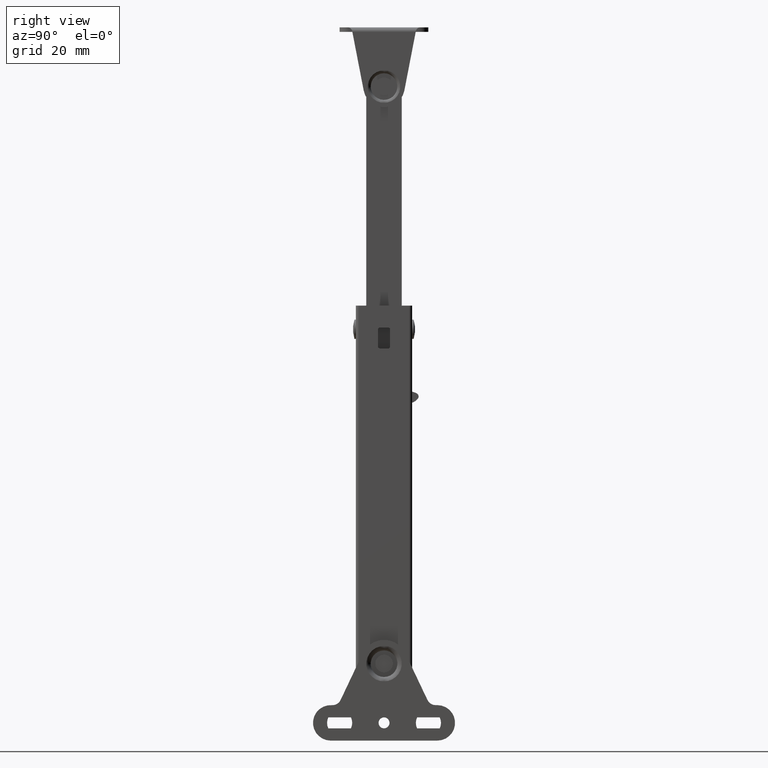
[diagram: clean part render]
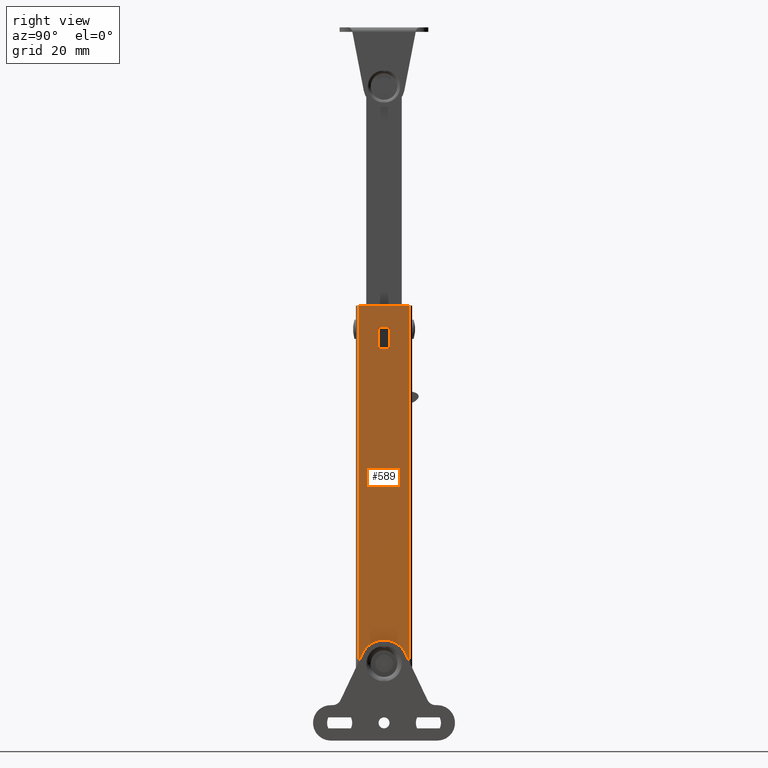
[diagram: same view with one face highlighted and labeled with its STEP entity id]
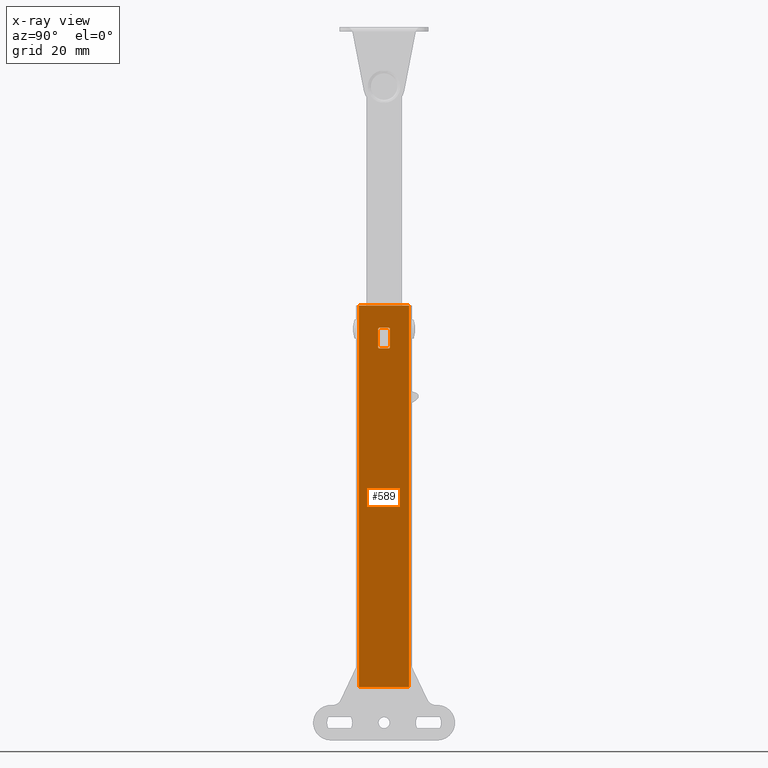
[diagram: x-ray of the same camera — body ghosted, the highlighted face saturated]
A machine part, right view. The second image highlights one B-rep face of the part: STEP entity #589.
The next image is the same camera in x-ray: the body ghosted, the highlighted face saturated — about 0% of this face is hidden behind the body in this view.
In plain terms, the highlighted planar face has unit normal (1, 0, 0).
Its self-contained STEP definition (entity closure, byte-faithful):
#589=ADVANCED_FACE('',(#2380,#2381),#2379,.T.);
#2379=PLANE('',#3993);
#2380=FACE_OUTER_BOUND('',#3994,.T.);
#2381=FACE_BOUND('',#3995,.T.);
#3990=CARTESIAN_POINT('',(0.00000000000E+00,-1.02000000000E+01,1.31000000000E+02));
#3991=DIRECTION('',(1.00000000000E+00,0.00000000000E+00,0.00000000000E+00));
#3992=DIRECTION('',(0.00000000000E+00,0.00000000000E+00,-1.00000000000E+00));
#3993=AXIS2_PLACEMENT_3D('',#3990,#3991,#3992);
#3994=EDGE_LOOP('',(#5025,#5026,#5027,#5028));
#3995=EDGE_LOOP('',(#5029,#5030,#5031,#5032,#5033,#5034,#5035,#5036));
#5025=ORIENTED_EDGE('',*,*,#5642,.F.);
#5026=ORIENTED_EDGE('',*,*,#5643,.F.);
#5027=ORIENTED_EDGE('',*,*,#5601,.T.);
#5028=ORIENTED_EDGE('',*,*,#5641,.T.);
#5029=ORIENTED_EDGE('',*,*,#5644,.T.);
#5030=ORIENTED_EDGE('',*,*,#5645,.F.);
#5031=ORIENTED_EDGE('',*,*,#5646,.T.);
#5032=ORIENTED_EDGE('',*,*,#5647,.F.);
#5033=ORIENTED_EDGE('',*,*,#5648,.T.);
#5034=ORIENTED_EDGE('',*,*,#5649,.F.);
#5035=ORIENTED_EDGE('',*,*,#5650,.T.);
#5036=ORIENTED_EDGE('',*,*,#5651,.F.);
#5601=EDGE_CURVE('',#8472,#8465,#8473,.T.);
#5641=EDGE_CURVE('',#8465,#8736,#8743,.T.);
#5642=EDGE_CURVE('',#8749,#8736,#8750,.T.);
#5643=EDGE_CURVE('',#8472,#8749,#8756,.T.);
#5644=EDGE_CURVE('',#8762,#8763,#8764,.T.);
#5645=EDGE_CURVE('',#8770,#8763,#8771,.T.);
#5646=EDGE_CURVE('',#8770,#8777,#8778,.T.);
#5647=EDGE_CURVE('',#8784,#8777,#8785,.T.);
#5648=EDGE_CURVE('',#8784,#8791,#8792,.T.);
#5649=EDGE_CURVE('',#8798,#8791,#8799,.T.);
#5650=EDGE_CURVE('',#8798,#8805,#8806,.T.);
#5651=EDGE_CURVE('',#8762,#8805,#8812,.T.);
#8465=VERTEX_POINT('',#10762);
#8472=VERTEX_POINT('',#10767);
#8473=LINE('',#10768,#10769);
#8736=VERTEX_POINT('',#10929);
#8743=LINE('',#10934,#10935);
#8749=VERTEX_POINT('',#10937);
#8750=LINE('',#10938,#10939);
#8756=LINE('',#10941,#10942);
#8762=VERTEX_POINT('',#10944);
#8763=VERTEX_POINT('',#10945);
#8764=LINE('',#10946,#10947);
#8770=VERTEX_POINT('',#10949);
#8771=CIRCLE('',#10953,5.00000000000E-01);
#8777=VERTEX_POINT('',#10954);
#8778=LINE('',#10955,#10956);
#8784=VERTEX_POINT('',#10958);
#8785=CIRCLE('',#10962,5.00000000000E-01);
#8791=VERTEX_POINT('',#10963);
#8792=LINE('',#10964,#10965);
#8798=VERTEX_POINT('',#10967);
#8799=CIRCLE('',#10971,5.00000000000E-01);
#8805=VERTEX_POINT('',#10972);
#8806=LINE('',#10973,#10974);
#8812=CIRCLE('',#10979,5.00000000000E-01);
#10762=CARTESIAN_POINT('',(0.00000000000E+00,8.50000000000E+00,-8.00000000000E+00));
#10767=CARTESIAN_POINT('',(-4.44089209850E-16,-8.50000000000E+00,-8.00000000000E+00));
#10768=CARTESIAN_POINT('',(0.00000000000E+00,-8.50000000000E+00,-8.00000000000E+00));
#10769=VECTOR('',#10770,1.70000000000E+01);
#10770=DIRECTION('',(0.00000000000E+00,1.00000000000E+00,0.00000000000E+00));
#10929=CARTESIAN_POINT('',(0.00000000000E+00,8.50000000000E+00,1.21000000000E+02));
#10934=CARTESIAN_POINT('',(0.00000000000E+00,8.50000000000E+00,-8.00000000000E+00));
#10935=VECTOR('',#10936,1.29000000000E+02);
#10936=DIRECTION('',(0.00000000000E+00,0.00000000000E+00,1.00000000000E+00));
#10937=CARTESIAN_POINT('',(-4.44089209850E-16,-8.50000000000E+00,1.21000000000E+02));
#10938=CARTESIAN_POINT('',(0.00000000000E+00,-8.50000000000E+00,1.21000000000E+02));
#10939=VECTOR('',#10940,1.70000000000E+01);
#10940=DIRECTION('',(0.00000000000E+00,1.00000000000E+00,0.00000000000E+00));
#10941=CARTESIAN_POINT('',(-4.44089209850E-16,-8.50000000000E+00,-8.00000000000E+00));
#10942=VECTOR('',#10943,1.29000000000E+02);
#10943=DIRECTION('',(0.00000000000E+00,0.00000000000E+00,1.00000000000E+00));
#10944=CARTESIAN_POINT('',(-1.66533453694E-13,-2.00000000000E+00,1.07000000079E+02));
#10945=CARTESIAN_POINT('',(-1.66533453694E-13,-2.00000000000E+00,1.13000000000E+02));
#10946=CARTESIAN_POINT('',(-1.66533453694E-13,-2.00000000000E+00,1.07000000079E+02));
#10947=VECTOR('',#10948,5.99999992146E+00);
#10948=DIRECTION('',(0.00000000000E+00,0.00000000000E+00,1.00000000000E+00));
#10949=CARTESIAN_POINT('',(-1.66533453694E-13,-1.50000002618E+00,1.13500000000E+02));
#10950=CARTESIAN_POINT('',(-1.66533453694E-13,-1.50000000000E+00,1.13000000000E+02));
#10951=DIRECTION('',(1.00000000000E+00,0.00000000000E+00,-0.00000000000E+00));
#10952=DIRECTION('',(-0.00000000000E+00,-0.00000000000E+00,-1.00000000000E+00));
#10953=AXIS2_PLACEMENT_3D('',#10950,#10951,#10952);
#10954=CARTESIAN_POINT('',(-1.66533453694E-13,1.50000000000E+00,1.13500000000E+02));
#10955=CARTESIAN_POINT('',(-1.66533453694E-13,-1.50000002618E+00,1.13500000000E+02));
#10956=VECTOR('',#10957,3.00000002618E+00);
#10957=DIRECTION('',(0.00000000000E+00,1.00000000000E+00,0.00000000000E+00));
#10958=CARTESIAN_POINT('',(-1.66533453694E-13,2.00000000000E+00,1.13000000000E+02));
#10959=CARTESIAN_POINT('',(-1.66533453694E-13,1.50000000000E+00,1.13000000000E+02));
#10960=DIRECTION('',(1.00000000000E+00,0.00000000000E+00,-0.00000000000E+00));
#10961=DIRECTION('',(-0.00000000000E+00,-0.00000000000E+00,-1.00000000000E+00));
#10962=AXIS2_PLACEMENT_3D('',#10959,#10960,#10961);
#10963=CARTESIAN_POINT('',(-1.66533453694E-13,2.00000000000E+00,1.07000000000E+02));
#10964=CARTESIAN_POINT('',(-1.66533453694E-13,2.00000000000E+00,1.13000000000E+02));
#10965=VECTOR('',#10966,6.00000000000E+00);
#10966=DIRECTION('',(0.00000000000E+00,0.00000000000E+00,-1.00000000000E+00));
#10967=CARTESIAN_POINT('',(0.00000000000E+00,1.50000000000E+00,1.06500000000E+02));
#10968=CARTESIAN_POINT('',(-1.66533453694E-13,1.50000000000E+00,1.07000000000E+02));
#10969=DIRECTION('',(1.00000000000E+00,0.00000000000E+00,-0.00000000000E+00));
#10970=DIRECTION('',(-0.00000000000E+00,-0.00000000000E+00,-1.00000000000E+00));
#10971=AXIS2_PLACEMENT_3D('',#10968,#10969,#10970);
#10972=CARTESIAN_POINT('',(-1.66533453694E-13,-1.49999999127E+00,1.06500000000E+02));
#10973=CARTESIAN_POINT('',(-1.66533453694E-13,1.50000000000E+00,1.06500000000E+02));
#10974=VECTOR('',#10975,2.99999999127E+00);
#10975=DIRECTION('',(0.00000000000E+00,-1.00000000000E+00,0.00000000000E+00));
#10976=CARTESIAN_POINT('',(-1.66533453694E-13,-1.50000000000E+00,1.07000000000E+02));
#10977=DIRECTION('',(1.00000000000E+00,0.00000000000E+00,-0.00000000000E+00));
#10978=DIRECTION('',(-0.00000000000E+00,1.74532921449E-08,-1.00000000000E+00));
#10979=AXIS2_PLACEMENT_3D('',#10976,#10977,#10978);